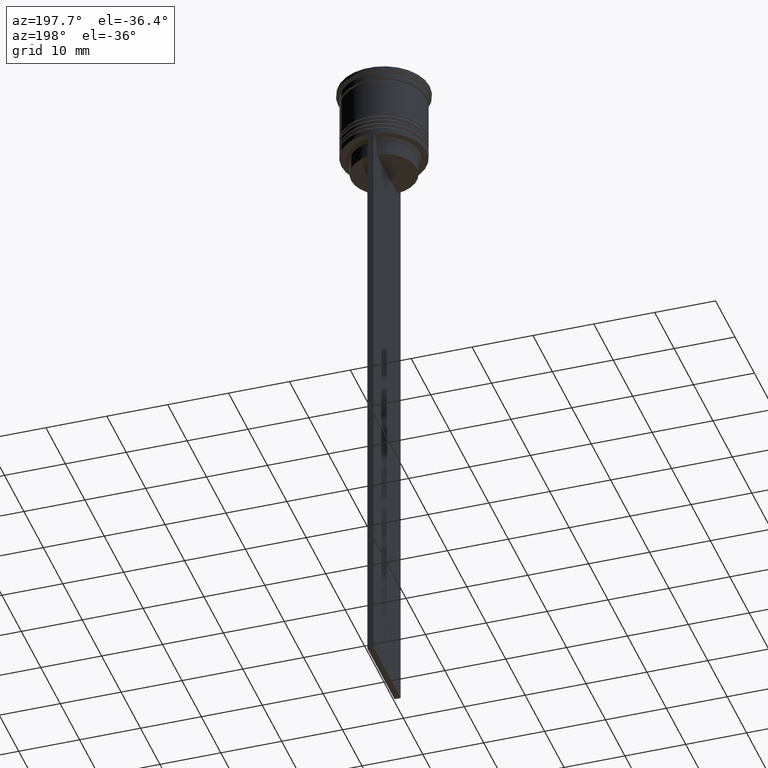
[diagram: clean part render]
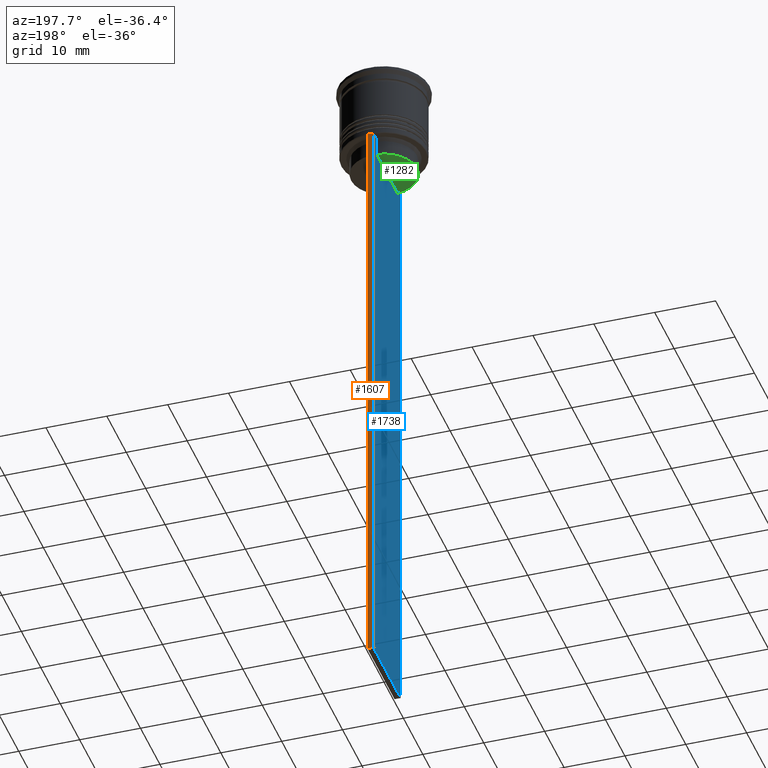
[diagram: same view with three faces highlighted in distinct colors, each labeled with its STEP entity id]
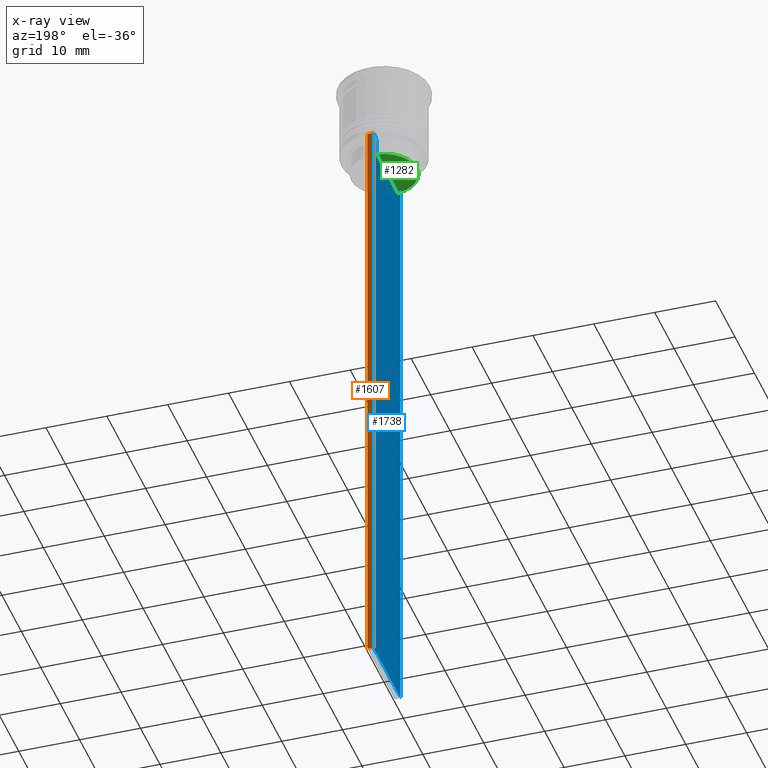
[diagram: x-ray of the same camera — body ghosted, the three highlighted faces saturated]
A machine part, auxiliary view with three faces highlighted in distinct colors.
The next image is the same camera in x-ray (body ghosted, the three faces saturated) — at least one of them is partly hidden behind the body in this view.
Their STEP definitions:

[orange] entity #1607 — the highlighted planar face has unit normal (0, -1, -0).
#20 = CARTESIAN_POINT ( 'NONE',  ( 0.5000000000000000000, 7.000000000000002665, -12.50000000000000000 ) ) ;
#98 = ORIENTED_EDGE ( 'NONE', *, *, #1960, .T. ) ;
#156 = ORIENTED_EDGE ( 'NONE', *, *, #1076, .F. ) ;
#189 = CARTESIAN_POINT ( 'NONE',  ( 0.5000000000000000000, 7.000000000000002665, -112.5000000000000000 ) ) ;
#374 = LINE ( 'NONE', #835, #1682 ) ;
#401 = DIRECTION ( 'NONE',  ( 0.000000000000000000, -1.000000000000000000, -0.000000000000000000 ) ) ;
#627 = LINE ( 'NONE', #2135, #716 ) ;
#692 = CARTESIAN_POINT ( 'NONE',  ( -0.5000000000000000000, 7.000000000000002665, -112.5000000000000000 ) ) ;
#716 = VECTOR ( 'NONE', #966, 1000.000000000000000 ) ;
#736 = VERTEX_POINT ( 'NONE', #20 ) ;
#835 = CARTESIAN_POINT ( 'NONE',  ( 0.5000000000000000000, 7.000000000000002665, 1.535668847618198329 ) ) ;
#913 = LINE ( 'NONE', #1491, #1689 ) ;
#930 = LINE ( 'NONE', #1718, #1498 ) ;
#947 = VERTEX_POINT ( 'NONE', #189 ) ;
#951 = CARTESIAN_POINT ( 'NONE',  ( 0.5000000000000000000, 7.000000000000002665, 1.535668847618198329 ) ) ;
#966 = DIRECTION ( 'NONE',  ( 1.000000000000000000, 0.000000000000000000, 0.000000000000000000 ) ) ;
#974 = EDGE_LOOP ( 'NONE', ( #156, #1409, #98, #1425 ) ) ;
#1001 = AXIS2_PLACEMENT_3D ( 'NONE', #951, #401, #1145 ) ;
#1076 = EDGE_CURVE ( 'NONE', #1778, #1288, #913, .T. ) ;
#1143 = DIRECTION ( 'NONE',  ( 0.000000000000000000, 0.000000000000000000, -1.000000000000000000 ) ) ;
#1145 = DIRECTION ( 'NONE',  ( 0.000000000000000000, 0.000000000000000000, -1.000000000000000000 ) ) ;
#1195 = PLANE ( 'NONE',  #1001 ) ;
#1288 = VERTEX_POINT ( 'NONE', #692 ) ;
#1409 = ORIENTED_EDGE ( 'NONE', *, *, #1485, .T. ) ;
#1425 = ORIENTED_EDGE ( 'NONE', *, *, #2269, .T. ) ;
#1485 = EDGE_CURVE ( 'NONE', #1778, #736, #627, .T. ) ;
#1491 = CARTESIAN_POINT ( 'NONE',  ( -0.5000000000000000000, 7.000000000000002665, 1.535668847618198329 ) ) ;
#1498 = VECTOR ( 'NONE', #1517, 1000.000000000000000 ) ;
#1517 = DIRECTION ( 'NONE',  ( -1.000000000000000000, 0.000000000000000000, 0.000000000000000000 ) ) ;
#1579 = FACE_OUTER_BOUND ( 'NONE', #974, .T. ) ;
#1607 = ADVANCED_FACE ( 'NONE', ( #1579 ), #1195, .F. ) ;
#1682 = VECTOR ( 'NONE', #1143, 1000.000000000000000 ) ;
#1689 = VECTOR ( 'NONE', #2068, 1000.000000000000000 ) ;
#1718 = CARTESIAN_POINT ( 'NONE',  ( 0.5000000000000000000, 7.000000000000002665, -112.5000000000000000 ) ) ;
#1778 = VERTEX_POINT ( 'NONE', #2425 ) ;
#1960 = EDGE_CURVE ( 'NONE', #736, #947, #374, .T. ) ;
#2068 = DIRECTION ( 'NONE',  ( 0.000000000000000000, 0.000000000000000000, -1.000000000000000000 ) ) ;
#2135 = CARTESIAN_POINT ( 'NONE',  ( 0.5000000000000000000, 7.000000000000002665, -12.50000000000000000 ) ) ;
#2269 = EDGE_CURVE ( 'NONE', #947, #1288, #930, .T. ) ;
#2425 = CARTESIAN_POINT ( 'NONE',  ( -0.5000000000000000000, 7.000000000000002665, -12.50000000000000000 ) ) ;

[blue] entity #1738 — the highlighted planar face has unit normal (-1, 0, 0).
#10 = CARTESIAN_POINT ( 'NONE',  ( -0.5000000000000000000, -5.376802023508029826, 0.000000000000000000 ) ) ;
#24 = B_SPLINE_CURVE_WITH_KNOTS ( 'NONE', 3,
 ( #92, #1590, #840, #113 ),
 .UNSPECIFIED., .F., .F.,
 ( 4, 4 ),
 ( 0.02539176325380714666, 0.02610162431828674801 ),
 .UNSPECIFIED. ) ;
#52 = ORIENTED_EDGE ( 'NONE', *, *, #1989, .F. ) ;
#79 = DIRECTION ( 'NONE',  ( -1.000000000000000000, 0.000000000000000000, 0.000000000000000000 ) ) ;
#92 = CARTESIAN_POINT ( 'NONE',  ( -0.5000000000000000000, -5.376802023508029826, -13.00000000000000178 ) ) ;
#102 = CARTESIAN_POINT ( 'NONE',  ( -0.5000000000000000000, -6.999999999999997335, -12.50000000000000000 ) ) ;
#113 = CARTESIAN_POINT ( 'NONE',  ( -0.5000000000000000000, -5.878775382679629402, -12.50000000000000000 ) ) ;
#114 = VERTEX_POINT ( 'NONE', #1162 ) ;
#123 = VECTOR ( 'NONE', #853, 1000.000000000000000 ) ;
#147 = CARTESIAN_POINT ( 'NONE',  ( -0.5000000000000000000, 6.881860213634102053, -12.50000000000000000 ) ) ;
#174 = ORIENTED_EDGE ( 'NONE', *, *, #1679, .F. ) ;
#232 = VECTOR ( 'NONE', #776, 1000.000000000000000 ) ;
#261 = CARTESIAN_POINT ( 'NONE',  ( -0.5000000000000000000, 5.376802023508029826, -13.00000000000000178 ) ) ;
#355 = DIRECTION ( 'NONE',  ( 0.000000000000000000, 0.000000000000000000, -1.000000000000000000 ) ) ;
#419 = VERTEX_POINT ( 'NONE', #1277 ) ;
#432 = CARTESIAN_POINT ( 'NONE',  ( -0.5000000000000000000, -6.999999999999997335, -112.5000000000000000 ) ) ;
#448 = VECTOR ( 'NONE', #2104, 1000.000000000000000 ) ;
#473 = CARTESIAN_POINT ( 'NONE',  ( -0.5000000000000000000, 5.878775382679629402, -12.50000000000000000 ) ) ;
#483 = ORIENTED_EDGE ( 'NONE', *, *, #1853, .F. ) ;
#493 = CARTESIAN_POINT ( 'NONE',  ( -0.5000000000000000000, 5.878775382679629402, -12.50000000000000000 ) ) ;
#516 = VERTEX_POINT ( 'NONE', #2206 ) ;
#570 = LINE ( 'NONE', #2103, #1292 ) ;
#571 = LINE ( 'NONE', #1341, #448 ) ;
#600 = DIRECTION ( 'NONE',  ( 0.000000000000000000, -1.000000000000000000, 0.000000000000000000 ) ) ;
#618 = CARTESIAN_POINT ( 'NONE',  ( -0.5000000000000000000, -6.999999999999997335, -12.50000000000000000 ) ) ;
#641 = EDGE_CURVE ( 'NONE', #2127, #2325, #570, .T. ) ;
#692 = CARTESIAN_POINT ( 'NONE',  ( -0.5000000000000000000, 7.000000000000002665, -112.5000000000000000 ) ) ;
#729 = DIRECTION ( 'NONE',  ( 0.000000000000000000, 0.000000000000000000, -1.000000000000000000 ) ) ;
#769 = CARTESIAN_POINT ( 'NONE',  ( -0.5000000000000000000, -6.999999999999997335, -12.50000000000000000 ) ) ;
#776 = DIRECTION ( 'NONE',  ( 0.000000000000000000, -1.000000000000000000, 0.000000000000000000 ) ) ;
#813 = LINE ( 'NONE', #769, #1923 ) ;
#821 = VECTOR ( 'NONE', #1350, 1000.000000000000000 ) ;
#825 = B_SPLINE_CURVE_WITH_KNOTS ( 'NONE', 3,
 ( #493, #1223, #1245, #261 ),
 .UNSPECIFIED., .F., .F.,
 ( 4, 4 ),
 ( 0.01003009312103698807, 0.01073859663834952557 ),
 .UNSPECIFIED. ) ;
#840 = CARTESIAN_POINT ( 'NONE',  ( -0.5000000000000000000, -5.711478856069293286, -12.66669469529570335 ) ) ;
#841 = ORIENTED_EDGE ( 'NONE', *, *, #2276, .F. ) ;
#844 = VERTEX_POINT ( 'NONE', #473 ) ;
#853 = DIRECTION ( 'NONE',  ( 0.000000000000000000, -1.000000000000000000, 0.000000000000000000 ) ) ;
#892 = ORIENTED_EDGE ( 'NONE', *, *, #641, .F. ) ;
#913 = LINE ( 'NONE', #1491, #1689 ) ;
#1058 = CARTESIAN_POINT ( 'NONE',  ( -0.5000000000000000000, -6.999999999999997335, 1.535668847618198329 ) ) ;
#1076 = EDGE_CURVE ( 'NONE', #1778, #1288, #913, .T. ) ;
#1111 = ORIENTED_EDGE ( 'NONE', *, *, #2332, .F. ) ;
#1162 = CARTESIAN_POINT ( 'NONE',  ( -0.5000000000000000000, -5.878775382679629402, -12.50000000000000000 ) ) ;
#1170 = VERTEX_POINT ( 'NONE', #432 ) ;
#1188 = VERTEX_POINT ( 'NONE', #1531 ) ;
#1201 = LINE ( 'NONE', #618, #232 ) ;
#1223 = CARTESIAN_POINT ( 'NONE',  ( -0.5000000000000000000, 5.711478846560141598, -12.66669470477064685 ) ) ;
#1245 = CARTESIAN_POINT ( 'NONE',  ( -0.5000000000000000000, 5.544156989057553275, -12.83336397825725861 ) ) ;
#1273 = ORIENTED_EDGE ( 'NONE', *, *, #1076, .T. ) ;
#1277 = CARTESIAN_POINT ( 'NONE',  ( -0.5000000000000000000, -5.376802023508029826, -13.00000000000000178 ) ) ;
#1287 = VECTOR ( 'NONE', #1963, 1000.000000000000000 ) ;
#1288 = VERTEX_POINT ( 'NONE', #692 ) ;
#1292 = VECTOR ( 'NONE', #729, 1000.000000000000000 ) ;
#1295 = CARTESIAN_POINT ( 'NONE',  ( -0.5000000000000000000, -6.999999999999997335, -12.50000000000000000 ) ) ;
#1304 = CARTESIAN_POINT ( 'NONE',  ( -0.5000000000000000000, 5.400000000000003908, -15.50000000000000000 ) ) ;
#1339 = CARTESIAN_POINT ( 'NONE',  ( -0.5000000000000000000, -6.999999999999997335, -12.50000000000000000 ) ) ;
#1341 = CARTESIAN_POINT ( 'NONE',  ( -0.5000000000000000000, -6.999999999999997335, -112.5000000000000000 ) ) ;
#1350 = DIRECTION ( 'NONE',  ( 0.000000000000000000, -1.000000000000000000, 0.000000000000000000 ) ) ;
#1422 = DIRECTION ( 'NONE',  ( 0.000000000000000000, 0.000000000000000000, 1.000000000000000000 ) ) ;
#1445 = ORIENTED_EDGE ( 'NONE', *, *, #2424, .F. ) ;
#1457 = PLANE ( 'NONE',  #2451 ) ;
#1472 = VERTEX_POINT ( 'NONE', #1295 ) ;
#1491 = CARTESIAN_POINT ( 'NONE',  ( -0.5000000000000000000, 7.000000000000002665, 1.535668847618198329 ) ) ;
#1531 = CARTESIAN_POINT ( 'NONE',  ( -0.5000000000000000000, -6.881860213634102053, -12.50000000000000000 ) ) ;
#1539 = EDGE_CURVE ( 'NONE', #2326, #844, #813, .T. ) ;
#1590 = CARTESIAN_POINT ( 'NONE',  ( -0.5000000000000000000, -5.544156999454441959, -12.83336396790503642 ) ) ;
#1599 = ORIENTED_EDGE ( 'NONE', *, *, #1639, .F. ) ;
#1621 = ORIENTED_EDGE ( 'NONE', *, *, #2061, .F. ) ;
#1639 = EDGE_CURVE ( 'NONE', #419, #114, #24, .T. ) ;
#1642 = FACE_OUTER_BOUND ( 'NONE', #2473, .T. ) ;
#1675 = ORIENTED_EDGE ( 'NONE', *, *, #1539, .F. ) ;
#1679 = EDGE_CURVE ( 'NONE', #114, #1188, #2363, .T. ) ;
#1684 = CARTESIAN_POINT ( 'NONE',  ( -0.5000000000000000000, 5.376802023508029826, -15.50000000000000000 ) ) ;
#1689 = VECTOR ( 'NONE', #2068, 1000.000000000000000 ) ;
#1705 = LINE ( 'NONE', #1339, #821 ) ;
#1709 = EDGE_CURVE ( 'NONE', #844, #2127, #825, .T. ) ;
#1738 = ADVANCED_FACE ( 'NONE', ( #1642 ), #1457, .T. ) ;
#1778 = VERTEX_POINT ( 'NONE', #2425 ) ;
#1853 = EDGE_CURVE ( 'NONE', #2325, #516, #2040, .T. ) ;
#1923 = VECTOR ( 'NONE', #600, 1000.000000000000000 ) ;
#1929 = ORIENTED_EDGE ( 'NONE', *, *, #1709, .F. ) ;
#1963 = DIRECTION ( 'NONE',  ( -0.000000000000000000, -0.000000000000000000, 1.000000000000000000 ) ) ;
#1966 = VECTOR ( 'NONE', #2062, 1000.000000000000000 ) ;
#1989 = EDGE_CURVE ( 'NONE', #516, #419, #2355, .T. ) ;
#2040 = LINE ( 'NONE', #1304, #1966 ) ;
#2061 = EDGE_CURVE ( 'NONE', #1170, #1288, #571, .T. ) ;
#2062 = DIRECTION ( 'NONE',  ( 0.000000000000000000, -1.000000000000000000, 0.000000000000000000 ) ) ;
#2068 = DIRECTION ( 'NONE',  ( 0.000000000000000000, 0.000000000000000000, -1.000000000000000000 ) ) ;
#2071 = CARTESIAN_POINT ( 'NONE',  ( -0.5000000000000000000, -6.999999999999997335, 1.535668847618198329 ) ) ;
#2103 = CARTESIAN_POINT ( 'NONE',  ( -0.5000000000000000000, 5.376802023508029826, 0.000000000000000000 ) ) ;
#2104 = DIRECTION ( 'NONE',  ( 0.000000000000000000, 1.000000000000000000, 0.000000000000000000 ) ) ;
#2127 = VERTEX_POINT ( 'NONE', #2193 ) ;
#2193 = CARTESIAN_POINT ( 'NONE',  ( -0.5000000000000000000, 5.376802023508029826, -13.00000000000000178 ) ) ;
#2206 = CARTESIAN_POINT ( 'NONE',  ( -0.5000000000000000000, -5.376802023508029826, -15.50000000000000000 ) ) ;
#2265 = LINE ( 'NONE', #2071, #2484 ) ;
#2276 = EDGE_CURVE ( 'NONE', #1188, #1472, #1705, .T. ) ;
#2325 = VERTEX_POINT ( 'NONE', #1684 ) ;
#2326 = VERTEX_POINT ( 'NONE', #147 ) ;
#2332 = EDGE_CURVE ( 'NONE', #1472, #1170, #2265, .T. ) ;
#2355 = LINE ( 'NONE', #10, #1287 ) ;
#2363 = LINE ( 'NONE', #102, #123 ) ;
#2424 = EDGE_CURVE ( 'NONE', #1778, #2326, #1201, .T. ) ;
#2425 = CARTESIAN_POINT ( 'NONE',  ( -0.5000000000000000000, 7.000000000000002665, -12.50000000000000000 ) ) ;
#2451 = AXIS2_PLACEMENT_3D ( 'NONE', #1058, #79, #1422 ) ;
#2473 = EDGE_LOOP ( 'NONE', ( #1929, #1675, #1445, #1273, #1621, #1111, #841, #174, #1599, #52, #483, #892 ) ) ;
#2484 = VECTOR ( 'NONE', #355, 1000.000000000000000 ) ;

[green] entity #1282 — the highlighted planar face has unit normal (0, -0, 1).
#55 = DIRECTION ( 'NONE',  ( 1.000000000000000000, 0.000000000000000000, 0.000000000000000000 ) ) ;
#243 = AXIS2_PLACEMENT_3D ( 'NONE', #1954, #1765, #55 ) ;
#264 = CARTESIAN_POINT ( 'NONE',  ( 0.000000000000000000, 5.400000000000003908, -15.50000000000000000 ) ) ;
#509 = DIRECTION ( 'NONE',  ( 1.000000000000000000, 0.000000000000000000, 0.000000000000000000 ) ) ;
#516 = VERTEX_POINT ( 'NONE', #2206 ) ;
#524 = AXIS2_PLACEMENT_3D ( 'NONE', #264, #1236, #509 ) ;
#636 = ORIENTED_EDGE ( 'NONE', *, *, #1623, .F. ) ;
#1236 = DIRECTION ( 'NONE',  ( 0.000000000000000000, -0.000000000000000000, 1.000000000000000000 ) ) ;
#1282 = ADVANCED_FACE ( 'NONE', ( #2392 ), #2200, .F. ) ;
#1304 = CARTESIAN_POINT ( 'NONE',  ( -0.5000000000000000000, 5.400000000000003908, -15.50000000000000000 ) ) ;
#1323 = CIRCLE ( 'NONE', #243, 5.400000000000003908 ) ;
#1436 = ORIENTED_EDGE ( 'NONE', *, *, #1853, .T. ) ;
#1623 = EDGE_CURVE ( 'NONE', #2325, #516, #1323, .T. ) ;
#1684 = CARTESIAN_POINT ( 'NONE',  ( -0.5000000000000000000, 5.376802023508029826, -15.50000000000000000 ) ) ;
#1711 = EDGE_LOOP ( 'NONE', ( #636, #1436 ) ) ;
#1765 = DIRECTION ( 'NONE',  ( -0.000000000000000000, -0.000000000000000000, 1.000000000000000000 ) ) ;
#1853 = EDGE_CURVE ( 'NONE', #2325, #516, #2040, .T. ) ;
#1954 = CARTESIAN_POINT ( 'NONE',  ( 0.000000000000000000, 0.000000000000000000, -15.50000000000000000 ) ) ;
#1966 = VECTOR ( 'NONE', #2062, 1000.000000000000000 ) ;
#2040 = LINE ( 'NONE', #1304, #1966 ) ;
#2062 = DIRECTION ( 'NONE',  ( 0.000000000000000000, -1.000000000000000000, 0.000000000000000000 ) ) ;
#2200 = PLANE ( 'NONE',  #524 ) ;
#2206 = CARTESIAN_POINT ( 'NONE',  ( -0.5000000000000000000, -5.376802023508029826, -15.50000000000000000 ) ) ;
#2325 = VERTEX_POINT ( 'NONE', #1684 ) ;
#2392 = FACE_OUTER_BOUND ( 'NONE', #1711, .T. ) ;